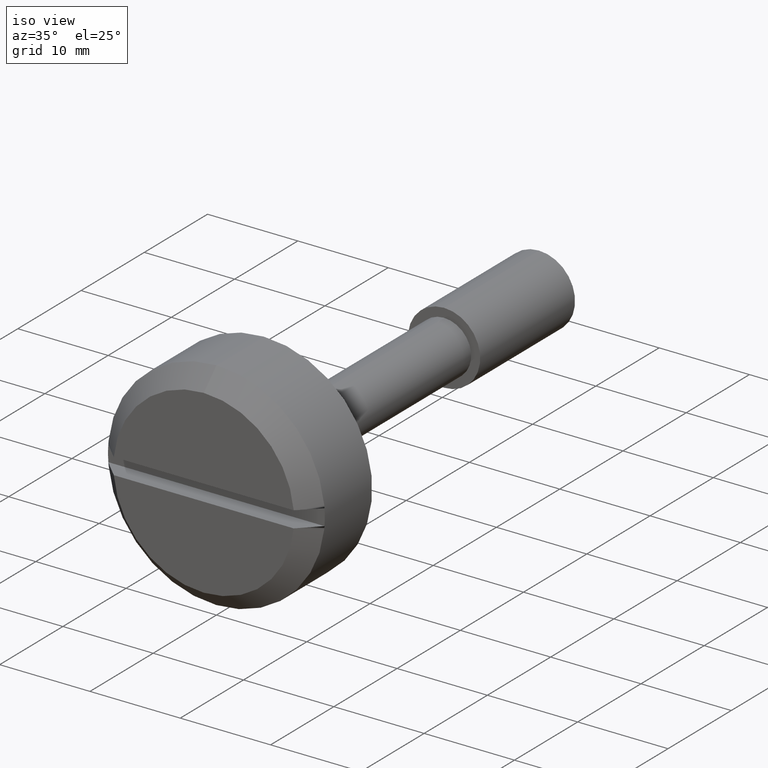
[diagram: clean part render]
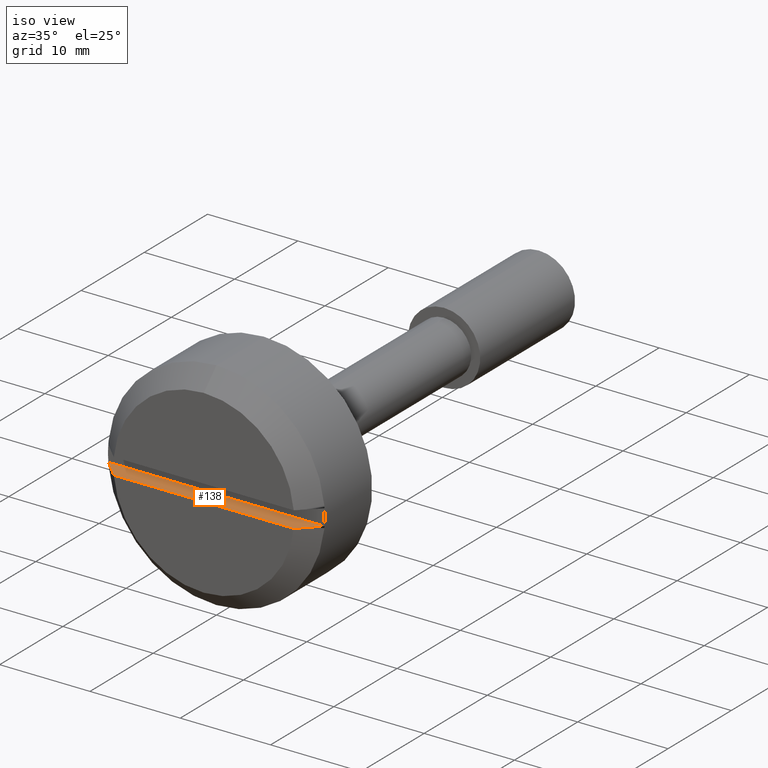
[diagram: same view with one face highlighted and labeled with its STEP entity id]
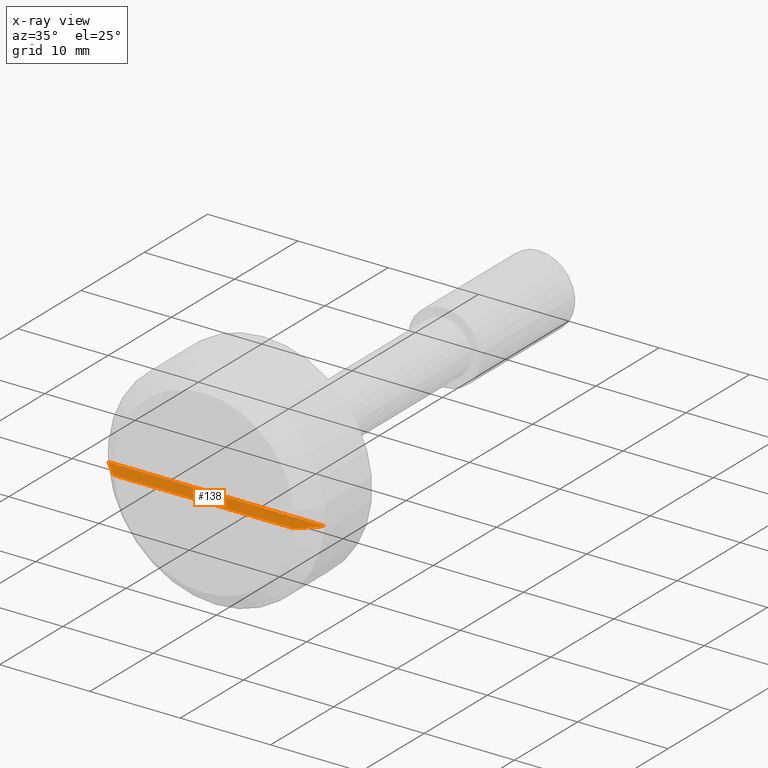
[diagram: x-ray of the same camera — body ghosted, the highlighted face saturated]
A machine part, iso view. The second image highlights one B-rep face of the part: STEP entity #138.
The next image is the same camera in x-ray: the body ghosted, the highlighted face saturated — about 0% of this face is hidden behind the body in this view.
In plain terms, the highlighted planar face has unit normal (0, 0, 1).
Its self-contained STEP definition (entity closure, byte-faithful):
#138=ADVANCED_FACE('',(#420),#419,.T.);
#419=PLANE('',#717);
#420=FACE_OUTER_BOUND('',#718,.T.);
#714=CARTESIAN_POINT('',(-1.21998900000E+01,-1.43593225472E+01,-9.00000000000E-01));
#715=DIRECTION('',(0.00000000000E+00,0.00000000000E+00,1.00000000000E+00));
#716=DIRECTION('',(1.00000000000E+00,0.00000000000E+00,0.00000000000E+00));
#717=AXIS2_PLACEMENT_3D('',#714,#715,#716);
#718=EDGE_LOOP('',(#961,#962,#963,#964));
#961=ORIENTED_EDGE('',*,*,#1103,.F.);
#962=ORIENTED_EDGE('',*,*,#1105,.T.);
#963=ORIENTED_EDGE('',*,*,#1106,.T.);
#964=ORIENTED_EDGE('',*,*,#1107,.T.);
#1103=EDGE_CURVE('',#1615,#1622,#1623,.T.);
#1105=EDGE_CURVE('',#1615,#1635,#1636,.T.);
#1106=EDGE_CURVE('',#1635,#1642,#1643,.T.);
#1107=EDGE_CURVE('',#1642,#1622,#1649,.T.);
#1615=VERTEX_POINT('',#2098);
#1622=VERTEX_POINT('',#2103);
#1623=LINE('',#2104,#2105);
#1635=VERTEX_POINT('',#2111);
#1636=(BOUNDED_CURVE() B_SPLINE_CURVE(3,(#2112,#2113,#2114,#2115),.UNSPECIFIED.,.F.,.F.) B_SPLINE_CURVE_WITH_KNOTS((4,4),(2.03654719955E-02,2.31985591046E-02),.UNSPECIFIED.) CURVE() GEOMETRIC_REPRESENTATION_ITEM() RATIONAL_B_SPLINE_CURVE((1.00000000000E+00,1.00000000000E+00,1.00000000000E+00,1.00000000000E+00)) REPRESENTATION_ITEM('') );
#1642=VERTEX_POINT('',#2116);
#1643=LINE('',#2117,#2118);
#1649=(BOUNDED_CURVE() B_SPLINE_CURVE(3,(#2120,#2121,#2122,#2123),.UNSPECIFIED.,.F.,.F.) B_SPLINE_CURVE_WITH_KNOTS((4,4),(5.03592465112E-02,5.31959732792E-02),.UNSPECIFIED.) CURVE() GEOMETRIC_REPRESENTATION_ITEM() RATIONAL_B_SPLINE_CURVE((1.00000000000E+00,1.00000000000E+00,1.00000000000E+00,1.00000000000E+00)) REPRESENTATION_ITEM('') );
#2098=CARTESIAN_POINT('',(-1.00000000000E+01,1.19661021227E+01,-9.00000000000E-01));
#2103=CARTESIAN_POINT('',(-1.00000000000E+01,-1.19661021227E+01,-9.00000000000E-01));
#2104=CARTESIAN_POINT('',(-1.00000000000E+01,1.19661021227E+01,-9.00000000000E-01));
#2105=VECTOR('',#2106,2.39322042453E+01);
#2106=DIRECTION('',(0.00000000000E+00,-1.00000000000E+00,0.00000000000E+00));
#2111=CARTESIAN_POINT('',(-1.19999000000E+01,9.95941765366E+00,-9.00000000000E-01));
#2112=CARTESIAN_POINT('',(-1.00000000000E+01,1.19661021227E+01,-9.00000000000E-01));
#2113=CARTESIAN_POINT('',(-1.06668226893E+01,1.12973960137E+01,-9.00000000000E-01));
#2114=CARTESIAN_POINT('',(-1.13334940331E+01,1.06285390723E+01,-9.00000000000E-01));
#2115=CARTESIAN_POINT('',(-1.19999000000E+01,9.95941765366E+00,-9.00000000000E-01));
#2116=CARTESIAN_POINT('',(-1.19999000000E+01,-9.95941765366E+00,-9.00000000000E-01));
#2117=CARTESIAN_POINT('',(-1.19999000000E+01,9.95941765366E+00,-9.00000000000E-01));
#2118=VECTOR('',#2119,1.99188353073E+01);
#2119=DIRECTION('',(0.00000000000E+00,-1.00000000000E+00,0.00000000000E+00));
#2120=CARTESIAN_POINT('',(-1.19999000000E+01,-9.95941765366E+00,-9.00000000000E-01));
#2121=CARTESIAN_POINT('',(-1.13334940831E+01,-1.06285390220E+01,-9.00000000000E-01));
#2122=CARTESIAN_POINT('',(-1.06668225228E+01,-1.12973961807E+01,-9.00000000000E-01));
#2123=CARTESIAN_POINT('',(-1.00000000000E+01,-1.19661021227E+01,-9.00000000000E-01));